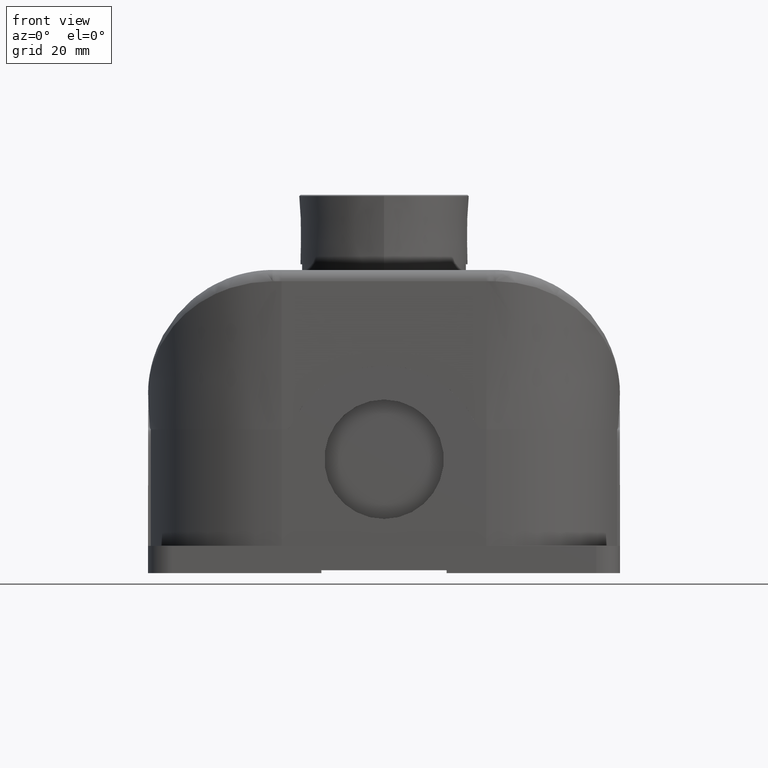
[diagram: clean part render]
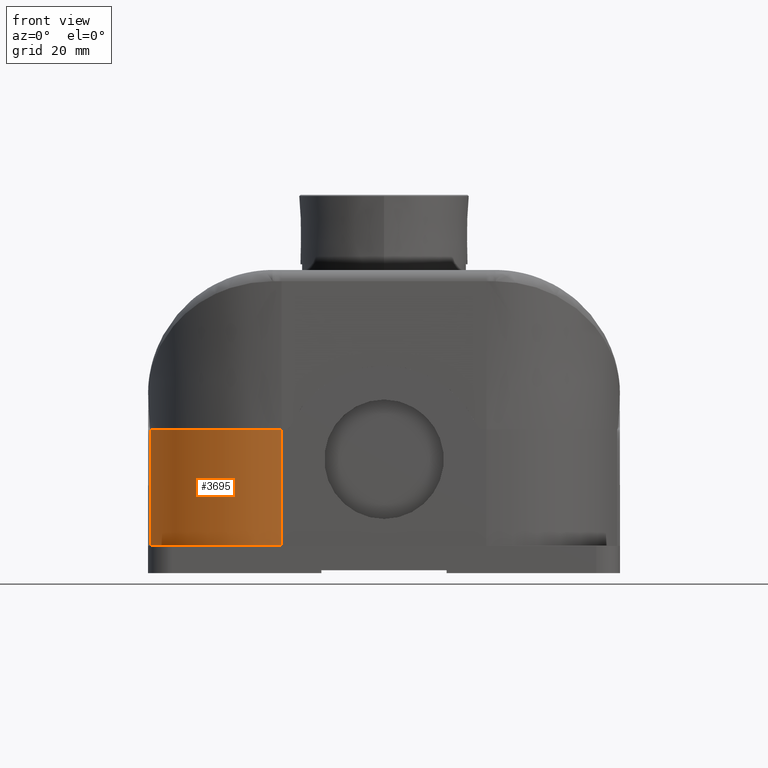
[diagram: same view with one face highlighted and labeled with its STEP entity id]
A machine part, front view. The second image highlights one B-rep face of the part: STEP entity #3695.
In plain terms, the highlighted cylindrical surface (partial cylindrical patch) has radius 23.5 mm, axis along (-0, -0, 1).
Its self-contained STEP definition (entity closure, byte-faithful):
#189 = CARTESIAN_POINT ( 'NONE',  ( 0.01918108836124199357, -2.102659460729538576, 0.9960629921259841479 ) ) ;
#660 = CARTESIAN_POINT ( 'NONE',  ( 0.9251968503937008093, -2.840440594260518647, 0.1889763779527557364 ) ) ;
#931 = LINE ( 'NONE', #21175, #12540 ) ;
#1863 = CIRCLE ( 'NONE', #18970, 0.9251968503937011423 ) ;
#2250 = EDGE_CURVE ( 'NONE', #10360, #2456, #4239, .T. ) ;
#2456 = VERTEX_POINT ( 'NONE', #22314 ) ;
#3054 = DIRECTION ( 'NONE',  ( -1.000000000000000000, 0.000000000000000000, 0.000000000000000000 ) ) ;
#3064 = DIRECTION ( 'NONE',  ( -0.000000000000000000, -0.000000000000000000, 1.000000000000000000 ) ) ;
#3648 = EDGE_CURVE ( 'NONE', #22784, #7188, #931, .T. ) ;
#3695 = ADVANCED_FACE ( 'NONE', ( #21787 ), #12470, .T. ) ;
#4239 = LINE ( 'NONE', #660, #15556 ) ;
#4826 = CARTESIAN_POINT ( 'NONE',  ( 0.9251968503937006982, -1.915243743866817727, 0.1889763779527557364 ) ) ;
#5314 = DIRECTION ( 'NONE',  ( 0.000000000000000000, 0.000000000000000000, -1.000000000000000000 ) ) ;
#5725 = CARTESIAN_POINT ( 'NONE',  ( 0.01918108836124199357, -2.102659460729538576, 0.1889763779527557364 ) ) ;
#6091 = AXIS2_PLACEMENT_3D ( 'NONE', #9025, #12591, #10809 ) ;
#7188 = VERTEX_POINT ( 'NONE', #189 ) ;
#7665 = CARTESIAN_POINT ( 'NONE',  ( 0.9251968503937006982, -1.915243743866817727, 0.9960629921259841479 ) ) ;
#8166 = CIRCLE ( 'NONE', #19192, 0.9251968503937011423 ) ;
#8200 = EDGE_CURVE ( 'NONE', #10360, #22784, #8166, .T. ) ;
#8961 = ORIENTED_EDGE ( 'NONE', *, *, #3648, .F. ) ;
#9025 = CARTESIAN_POINT ( 'NONE',  ( 0.9251968503937006982, -1.915243743866817727, 0.1889763779527557364 ) ) ;
#10360 = VERTEX_POINT ( 'NONE', #11366 ) ;
#10809 = DIRECTION ( 'NONE',  ( 1.000000000000000000, 0.000000000000000000, 0.000000000000000000 ) ) ;
#11366 = CARTESIAN_POINT ( 'NONE',  ( 0.9251968503937008093, -2.840440594260518647, 0.1889763779527557364 ) ) ;
#12470 = CYLINDRICAL_SURFACE ( 'NONE', #6091, 0.9251968503937009203 ) ;
#12540 = VECTOR ( 'NONE', #3064, 39.37007874015748143 ) ;
#12591 = DIRECTION ( 'NONE',  ( -0.000000000000000000, -0.000000000000000000, 1.000000000000000000 ) ) ;
#13370 = ORIENTED_EDGE ( 'NONE', *, *, #2250, .T. ) ;
#15556 = VECTOR ( 'NONE', #22251, 39.37007874015748143 ) ;
#16335 = ORIENTED_EDGE ( 'NONE', *, *, #8200, .F. ) ;
#16612 = ORIENTED_EDGE ( 'NONE', *, *, #22343, .T. ) ;
#16921 = DIRECTION ( 'NONE',  ( 0.000000000000000000, 0.000000000000000000, -1.000000000000000000 ) ) ;
#18970 = AXIS2_PLACEMENT_3D ( 'NONE', #7665, #16921, #20397 ) ;
#19192 = AXIS2_PLACEMENT_3D ( 'NONE', #4826, #5314, #3054 ) ;
#19274 = EDGE_LOOP ( 'NONE', ( #16612, #8961, #16335, #13370 ) ) ;
#20397 = DIRECTION ( 'NONE',  ( -1.000000000000000000, 0.000000000000000000, 0.000000000000000000 ) ) ;
#21175 = CARTESIAN_POINT ( 'NONE',  ( 0.01918108836124199357, -2.102659460729538576, 0.1889763779527557364 ) ) ;
#21787 = FACE_OUTER_BOUND ( 'NONE', #19274, .T. ) ;
#22251 = DIRECTION ( 'NONE',  ( -0.000000000000000000, -0.000000000000000000, 1.000000000000000000 ) ) ;
#22314 = CARTESIAN_POINT ( 'NONE',  ( 0.9251968503937008093, -2.840440594260518647, 0.9960629921259841479 ) ) ;
#22343 = EDGE_CURVE ( 'NONE', #2456, #7188, #1863, .T. ) ;
#22784 = VERTEX_POINT ( 'NONE', #5725 ) ;